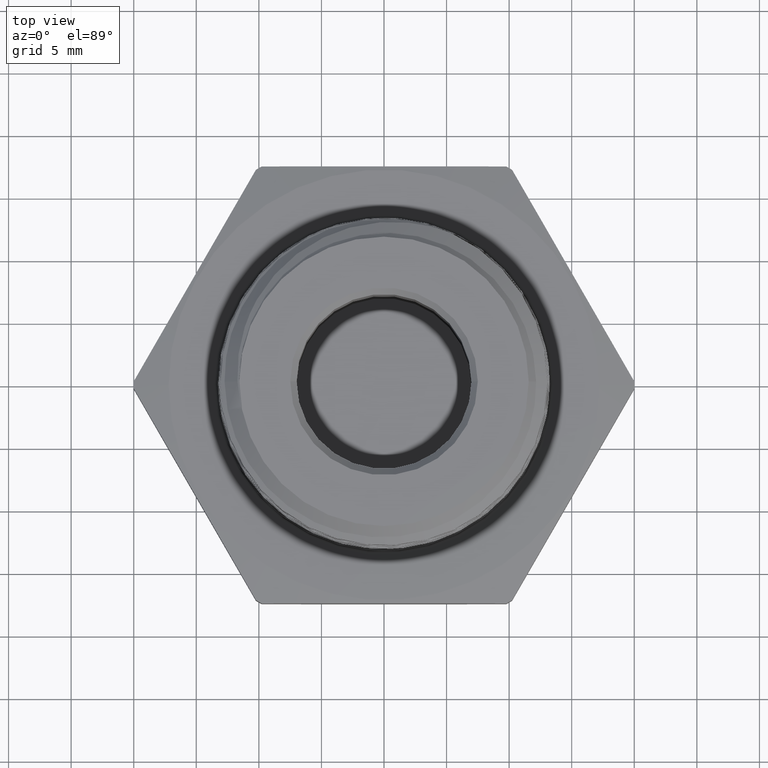
[diagram: clean part render]
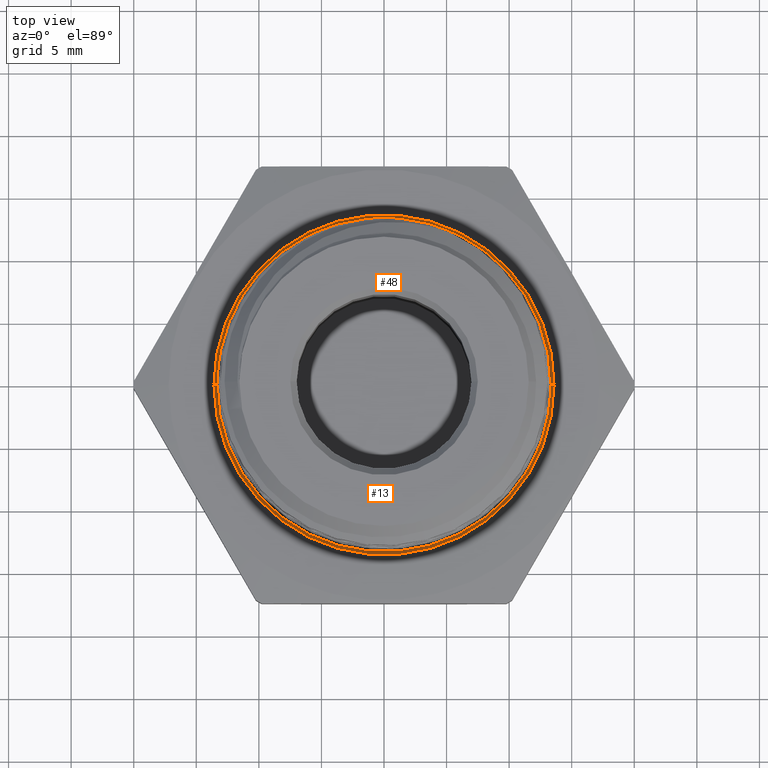
[diagram: same view with one multi-face feature highlighted, each face labeled with its STEP entity id]
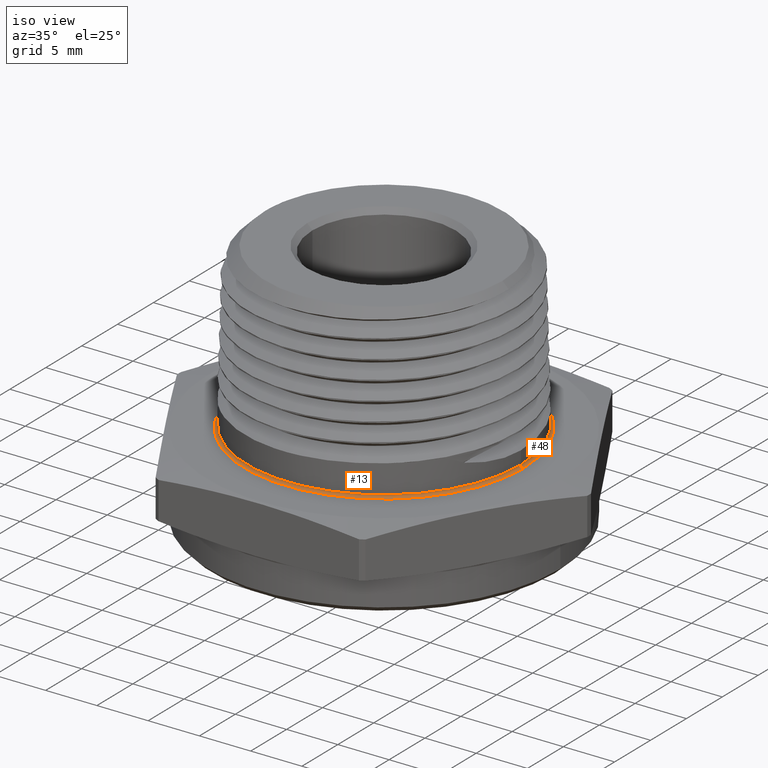
[diagram: same view with one multi-face feature highlighted, each face labeled with its STEP entity id]
A machine part, top view. The highlighted faces form ONE feature: a constant-radius fillet chain: 2 tangent blend faces with common blend radius 0.254 mm. The faces share edges in the B-rep.
A second angle (iso view) of the same feature is appended — it is thin or edge-on in the first view.
Their STEP definitions:
[1] entity #48 (Torus):
#48 = ADVANCED_FACE ( 'NONE', ( #697 ), #696, .F. ) ;
#244 = EDGE_LOOP ( 'NONE', ( #4699, #4698, #4697, #5025 ) ) ;
#528 = AXIS2_PLACEMENT_3D ( 'NONE', #1257, #1259, #1260 ) ;
#551 = AXIS2_PLACEMENT_3D ( 'NONE', #3255, #3256, #3257 ) ;
#568 = AXIS2_PLACEMENT_3D ( 'NONE', #3662, #3663, #3664 ) ;
#570 = AXIS2_PLACEMENT_3D ( 'NONE', #3668, #3669, #3670 ) ;
#588 = AXIS2_PLACEMENT_3D ( 'NONE', #3850, #3851, #3852 ) ;
#696 = TOROIDAL_SURFACE ( 'NONE', #528, 0.5350000000000000300, 0.01000000000000000000 ) ;
#697 = FACE_OUTER_BOUND ( 'NONE', #244, .T. ) ;
#733 = CIRCLE ( 'NONE', #551, 0.5350000000000000300 ) ;
#794 = CIRCLE ( 'NONE', #568, 0.01000000000000003000 ) ;
#796 = CIRCLE ( 'NONE', #570, 0.009999999999999995000 ) ;
#825 = CIRCLE ( 'NONE', #588, 0.5250000000000000200 ) ;
#1147 = VERTEX_POINT ( 'NONE', #3169 ) ;
#1148 = VERTEX_POINT ( 'NONE', #3170 ) ;
#1150 = VERTEX_POINT ( 'NONE', #3172 ) ;
#1159 = VERTEX_POINT ( 'NONE', #3181 ) ;
#1257 = CARTESIAN_POINT ( 'NONE',  ( 0.0000000000000000000, 0.0000000000000000000, 0.2000000000000000400 ) ) ;
#1259 = DIRECTION ( 'NONE',  ( -0.0000000000000000000, 0.0000000000000000000, 1.000000000000000000 ) ) ;
#1260 = DIRECTION ( 'NONE',  ( 1.000000000000000000, 0.0000000000000000000, 0.0000000000000000000 ) ) ;
#1864 = EDGE_CURVE ( 'NONE', #1147, #1148, #733, .T. ) ;
#1911 = EDGE_CURVE ( 'NONE', #1159, #1147, #794, .T. ) ;
#1913 = EDGE_CURVE ( 'NONE', #1150, #1148, #796, .T. ) ;
#1947 = EDGE_CURVE ( 'NONE', #1150, #1159, #825, .T. ) ;
#3169 = CARTESIAN_POINT ( 'NONE',  ( -0.5350000000000000300, 6.551860375438339900E-017, 0.1900000000000000300 ) ) ;
#3170 = CARTESIAN_POINT ( 'NONE',  ( 0.5350000000000000300, 0.0000000000000000000, 0.1900000000000000300 ) ) ;
#3172 = CARTESIAN_POINT ( 'NONE',  ( 0.5250000000000000200, 6.429395695523603700E-017, 0.2000000000000000400 ) ) ;
#3181 = CARTESIAN_POINT ( 'NONE',  ( -0.5250000000000000200, 0.0000000000000000000, 0.2000000000000000400 ) ) ;
#3255 = CARTESIAN_POINT ( 'NONE',  ( 0.0000000000000000000, 0.0000000000000000000, 0.1899999999999999700 ) ) ;
#3256 = DIRECTION ( 'NONE',  ( 0.0000000000000000000, -0.0000000000000000000, -1.000000000000000000 ) ) ;
#3257 = DIRECTION ( 'NONE',  ( 1.000000000000000000, 0.0000000000000000000, 0.0000000000000000000 ) ) ;
#3662 = CARTESIAN_POINT ( 'NONE',  ( -0.5350000000000000300, 6.551860375438339900E-017, 0.2000000000000000400 ) ) ;
#3663 = DIRECTION ( 'NONE',  ( 1.224646799147353200E-016, 1.000000000000000000, 0.0000000000000000000 ) ) ;
#3664 = DIRECTION ( 'NONE',  ( -1.000000000000000000, 1.224646799147346800E-016, 0.0000000000000000000 ) ) ;
#3668 = CARTESIAN_POINT ( 'NONE',  ( 0.5350000000000000300, 0.0000000000000000000, 0.2000000000000000400 ) ) ;
#3669 = DIRECTION ( 'NONE',  ( 0.0000000000000000000, -1.000000000000000000, 0.0000000000000000000 ) ) ;
#3670 = DIRECTION ( 'NONE',  ( 0.0000000000000000000, 0.0000000000000000000, -1.000000000000000000 ) ) ;
#3850 = CARTESIAN_POINT ( 'NONE',  ( 0.0000000000000000000, 0.0000000000000000000, 0.2000000000000000400 ) ) ;
#3851 = DIRECTION ( 'NONE',  ( -0.0000000000000000000, 0.0000000000000000000, 1.000000000000000000 ) ) ;
#3852 = DIRECTION ( 'NONE',  ( 1.000000000000000000, 0.0000000000000000000, 0.0000000000000000000 ) ) ;
#4697 = ORIENTED_EDGE ( 'NONE', *, *, #1913, .T. ) ;
#4698 = ORIENTED_EDGE ( 'NONE', *, *, #1947, .F. ) ;
#4699 = ORIENTED_EDGE ( 'NONE', *, *, #1911, .F. ) ;
#5025 = ORIENTED_EDGE ( 'NONE', *, *, #1864, .F. ) ;
[2] entity #13 (Torus):
#13 = ADVANCED_FACE ( 'NONE', ( #622 ), #630, .F. ) ;
#288 = EDGE_LOOP ( 'NONE', ( #306, #305, #304, #303 ) ) ;
#303 = ORIENTED_EDGE ( 'NONE', *, *, #1913, .F. ) ;
#304 = ORIENTED_EDGE ( 'NONE', *, *, #1912, .F. ) ;
#305 = ORIENTED_EDGE ( 'NONE', *, *, #1911, .T. ) ;
#306 = ORIENTED_EDGE ( 'NONE', *, *, #1910, .F. ) ;
#567 = AXIS2_PLACEMENT_3D ( 'NONE', #3659, #3660, #3661 ) ;
#568 = AXIS2_PLACEMENT_3D ( 'NONE', #3662, #3663, #3664 ) ;
#569 = AXIS2_PLACEMENT_3D ( 'NONE', #3665, #3666, #3667 ) ;
#570 = AXIS2_PLACEMENT_3D ( 'NONE', #3668, #3669, #3670 ) ;
#622 = FACE_OUTER_BOUND ( 'NONE', #288, .T. ) ;
#630 = TOROIDAL_SURFACE ( 'NONE', #1977, 0.5350000000000000300, 0.01000000000000000000 ) ;
#791 = CIRCLE ( 'NONE', #567, 0.5250000000000000200 ) ;
#792 = CIRCLE ( 'NONE', #569, 0.5350000000000000300 ) ;
#794 = CIRCLE ( 'NONE', #568, 0.01000000000000003000 ) ;
#796 = CIRCLE ( 'NONE', #570, 0.009999999999999995000 ) ;
#1147 = VERTEX_POINT ( 'NONE', #3169 ) ;
#1148 = VERTEX_POINT ( 'NONE', #3170 ) ;
#1150 = VERTEX_POINT ( 'NONE', #3172 ) ;
#1159 = VERTEX_POINT ( 'NONE', #3181 ) ;
#1910 = EDGE_CURVE ( 'NONE', #1159, #1150, #791, .T. ) ;
#1911 = EDGE_CURVE ( 'NONE', #1159, #1147, #794, .T. ) ;
#1912 = EDGE_CURVE ( 'NONE', #1148, #1147, #792, .T. ) ;
#1913 = EDGE_CURVE ( 'NONE', #1150, #1148, #796, .T. ) ;
#1977 = AXIS2_PLACEMENT_3D ( 'NONE', #2081, #2080, #2083 ) ;
#2080 = DIRECTION ( 'NONE',  ( -0.0000000000000000000, 0.0000000000000000000, 1.000000000000000000 ) ) ;
#2081 = CARTESIAN_POINT ( 'NONE',  ( 0.0000000000000000000, 0.0000000000000000000, 0.2000000000000000400 ) ) ;
#2083 = DIRECTION ( 'NONE',  ( 1.000000000000000000, 0.0000000000000000000, 0.0000000000000000000 ) ) ;
#3169 = CARTESIAN_POINT ( 'NONE',  ( -0.5350000000000000300, 6.551860375438339900E-017, 0.1900000000000000300 ) ) ;
#3170 = CARTESIAN_POINT ( 'NONE',  ( 0.5350000000000000300, 0.0000000000000000000, 0.1900000000000000300 ) ) ;
#3172 = CARTESIAN_POINT ( 'NONE',  ( 0.5250000000000000200, 6.429395695523603700E-017, 0.2000000000000000400 ) ) ;
#3181 = CARTESIAN_POINT ( 'NONE',  ( -0.5250000000000000200, 0.0000000000000000000, 0.2000000000000000400 ) ) ;
#3659 = CARTESIAN_POINT ( 'NONE',  ( 0.0000000000000000000, 0.0000000000000000000, 0.2000000000000000400 ) ) ;
#3660 = DIRECTION ( 'NONE',  ( -0.0000000000000000000, 0.0000000000000000000, 1.000000000000000000 ) ) ;
#3661 = DIRECTION ( 'NONE',  ( 1.000000000000000000, 0.0000000000000000000, 0.0000000000000000000 ) ) ;
#3662 = CARTESIAN_POINT ( 'NONE',  ( -0.5350000000000000300, 6.551860375438339900E-017, 0.2000000000000000400 ) ) ;
#3663 = DIRECTION ( 'NONE',  ( 1.224646799147353200E-016, 1.000000000000000000, 0.0000000000000000000 ) ) ;
#3664 = DIRECTION ( 'NONE',  ( -1.000000000000000000, 1.224646799147346800E-016, 0.0000000000000000000 ) ) ;
#3665 = CARTESIAN_POINT ( 'NONE',  ( 0.0000000000000000000, 0.0000000000000000000, 0.1899999999999999700 ) ) ;
#3666 = DIRECTION ( 'NONE',  ( 0.0000000000000000000, -0.0000000000000000000, -1.000000000000000000 ) ) ;
#3667 = DIRECTION ( 'NONE',  ( 1.000000000000000000, 0.0000000000000000000, 0.0000000000000000000 ) ) ;
#3668 = CARTESIAN_POINT ( 'NONE',  ( 0.5350000000000000300, 0.0000000000000000000, 0.2000000000000000400 ) ) ;
#3669 = DIRECTION ( 'NONE',  ( 0.0000000000000000000, -1.000000000000000000, 0.0000000000000000000 ) ) ;
#3670 = DIRECTION ( 'NONE',  ( 0.0000000000000000000, 0.0000000000000000000, -1.000000000000000000 ) ) ;